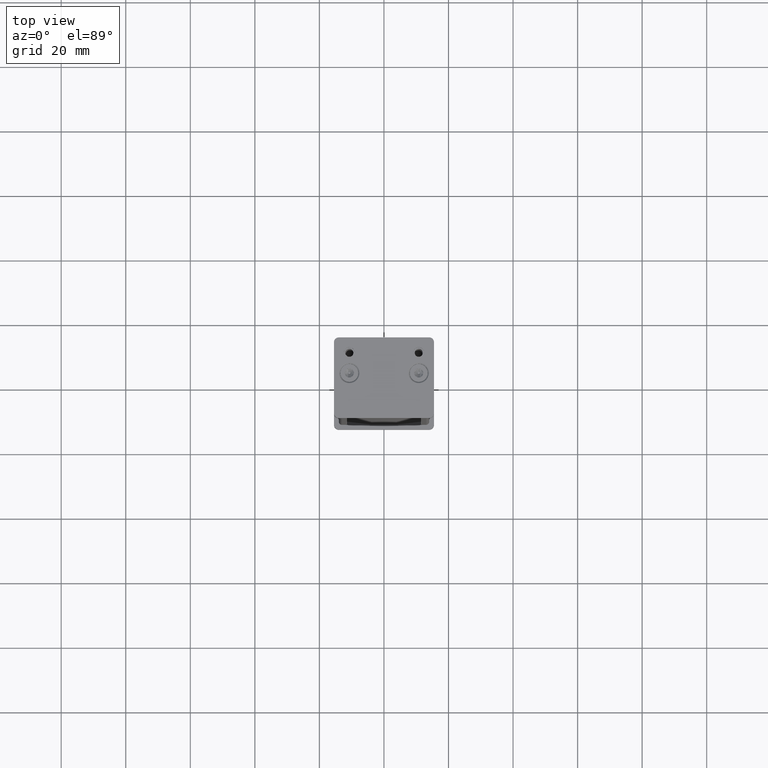
[diagram: clean part render]
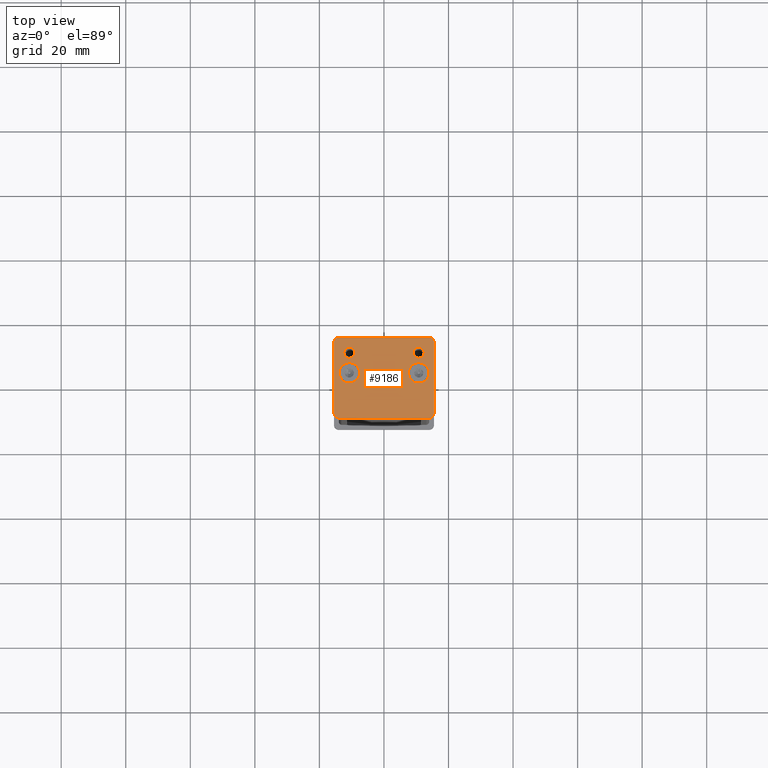
[diagram: same view with one face highlighted and labeled with its STEP entity id]
A machine part, top view. The second image highlights one B-rep face of the part: STEP entity #9186.
In plain terms, the highlighted planar face has unit normal (-0, 0, 1).
Its self-contained STEP definition (entity closure, byte-faithful):
#105 = DIRECTION ( 'NONE',  ( -1.000000000000000000, 0.000000000000000000, 0.000000000000000000 ) ) ;
#230 = CARTESIAN_POINT ( 'NONE',  ( 13.90000000000000391, 105.0000000000000142, -1.499999999999988676 ) ) ;
#244 = EDGE_CURVE ( 'NONE', #8633, #555, #13095, .T. ) ;
#455 = ORIENTED_EDGE ( 'NONE', *, *, #22037, .F. ) ;
#555 = VERTEX_POINT ( 'NONE', #13223 ) ;
#838 = VERTEX_POINT ( 'NONE', #21368 ) ;
#1101 = DIRECTION ( 'NONE',  ( -1.000000000000000000, 0.000000000000000000, 0.000000000000000000 ) ) ;
#1149 = DIRECTION ( 'NONE',  ( 0.000000000000000000, 1.000000000000000000, 0.000000000000000000 ) ) ;
#1255 = CARTESIAN_POINT ( 'NONE',  ( 14.00000000000000533, 105.0000000000000142, -10.99999999999998046 ) ) ;
#1365 = DIRECTION ( 'NONE',  ( -1.000000000000000000, 0.000000000000000000, 0.000000000000000000 ) ) ;
#1493 = CIRCLE ( 'NONE', #16394, 1.700000000000000178 ) ;
#1613 = CARTESIAN_POINT ( 'NONE',  ( -10.75000000000000711, 105.0000000000000142, -1.499999999999982681 ) ) ;
#1886 = FACE_BOUND ( 'NONE', #3379, .T. ) ;
#1948 = CARTESIAN_POINT ( 'NONE',  ( -12.45000000000000817, 105.0000000000000142, -7.749999999999982236 ) ) ;
#2041 = EDGE_CURVE ( 'NONE', #555, #8633, #9448, .T. ) ;
#2054 = CARTESIAN_POINT ( 'NONE',  ( 10.75000000000000533, 105.0000000000000142, -7.749999999999978684 ) ) ;
#2090 = CIRCLE ( 'NONE', #8631, 1.700000000000000178 ) ;
#2216 = ORIENTED_EDGE ( 'NONE', *, *, #6530, .F. ) ;
#2469 = DIRECTION ( 'NONE',  ( 0.000000000000000000, 1.000000000000000000, 0.000000000000000000 ) ) ;
#2752 = CARTESIAN_POINT ( 'NONE',  ( 9.050000000000016698, 105.0000000000000142, -7.749999999999978684 ) ) ;
#3096 = AXIS2_PLACEMENT_3D ( 'NONE', #14967, #18619, #1101 ) ;
#3140 = CARTESIAN_POINT ( 'NONE',  ( -15.50000000000000533, 105.0000000000000142, -12.49999999999997335 ) ) ;
#3379 = EDGE_LOOP ( 'NONE', ( #4695, #17573 ) ) ;
#3409 = ORIENTED_EDGE ( 'NONE', *, *, #244, .F. ) ;
#3523 = DIRECTION ( 'NONE',  ( 0.000000000000000000, 1.000000000000000000, 0.000000000000000000 ) ) ;
#3632 = AXIS2_PLACEMENT_3D ( 'NONE', #11340, #2469, #21686 ) ;
#4167 = DIRECTION ( 'NONE',  ( -1.000000000000000000, 0.000000000000000000, -1.377972324345833111E-16 ) ) ;
#4183 = CARTESIAN_POINT ( 'NONE',  ( -7.600000000000007638, 105.0000000000000142, -1.499999999999982681 ) ) ;
#4249 = VECTOR ( 'NONE', #14969, 1000.000000000000000 ) ;
#4339 = EDGE_CURVE ( 'NONE', #21824, #22077, #16234, .T. ) ;
#4695 = ORIENTED_EDGE ( 'NONE', *, *, #4339, .F. ) ;
#4730 = DIRECTION ( 'NONE',  ( -1.000000000000000000, 0.000000000000000000, -1.376764663473656463E-16 ) ) ;
#5179 = EDGE_CURVE ( 'NONE', #22077, #21824, #2090, .T. ) ;
#5225 = CARTESIAN_POINT ( 'NONE',  ( -10.75000000000000711, 105.0000000000000142, -7.749999999999982236 ) ) ;
#5247 = ORIENTED_EDGE ( 'NONE', *, *, #21325, .T. ) ;
#5575 = DIRECTION ( 'NONE',  ( 0.000000000000000000, 1.000000000000000000, 0.000000000000000000 ) ) ;
#5691 = DIRECTION ( 'NONE',  ( -1.000000000000000000, 0.000000000000000000, 0.000000000000000000 ) ) ;
#6381 = AXIS2_PLACEMENT_3D ( 'NONE', #7811, #20326, #4730 ) ;
#6530 = EDGE_CURVE ( 'NONE', #13995, #9871, #12128, .T. ) ;
#7104 = AXIS2_PLACEMENT_3D ( 'NONE', #11568, #21803, #9964 ) ;
#7391 = DIRECTION ( 'NONE',  ( 0.000000000000000000, 1.000000000000000000, 0.000000000000000000 ) ) ;
#7397 = EDGE_CURVE ( 'NONE', #13341, #10915, #14733, .T. ) ;
#7796 = DIRECTION ( 'NONE',  ( 1.000000000000000000, 0.000000000000000000, 1.377972324345833111E-16 ) ) ;
#7811 = CARTESIAN_POINT ( 'NONE',  ( -10.75000000000000711, 105.0000000000000142, -1.499999999999982681 ) ) ;
#7843 = AXIS2_PLACEMENT_3D ( 'NONE', #1613, #7391, #13772 ) ;
#7947 = CARTESIAN_POINT ( 'NONE',  ( 15.50000000000000711, 105.0000000000000142, -10.99999999999998046 ) ) ;
#7979 = CARTESIAN_POINT ( 'NONE',  ( -15.50000000000000888, 105.0000000000000142, 11.00000000000001599 ) ) ;
#8537 = ORIENTED_EDGE ( 'NONE', *, *, #18705, .F. ) ;
#8624 = DIRECTION ( 'NONE',  ( -1.000000000000000000, 0.000000000000000000, 0.000000000000000000 ) ) ;
#8631 = AXIS2_PLACEMENT_3D ( 'NONE', #2054, #5575, #5691 ) ;
#8633 = VERTEX_POINT ( 'NONE', #230 ) ;
#8642 = EDGE_LOOP ( 'NONE', ( #13720, #20211 ) ) ;
#8705 = FACE_BOUND ( 'NONE', #8642, .T. ) ;
#8757 = AXIS2_PLACEMENT_3D ( 'NONE', #5225, #12069, #10810 ) ;
#8929 = EDGE_CURVE ( 'NONE', #13004, #19572, #12827, .T. ) ;
#8933 = EDGE_CURVE ( 'NONE', #13317, #838, #13161, .T. ) ;
#9162 = FACE_BOUND ( 'NONE', #14958, .T. ) ;
#9186 = ADVANCED_FACE ( 'NONE', ( #17460, #1886, #17345, #9162, #8705 ), #10873, .T. ) ;
#9448 = CIRCLE ( 'NONE', #15599, 3.149999999999999911 ) ;
#9594 = DIRECTION ( 'NONE',  ( -1.000000000000000000, 0.000000000000000000, -1.376764663473656463E-16 ) ) ;
#9789 = CARTESIAN_POINT ( 'NONE',  ( -15.50000000000000533, 105.0000000000000142, -10.99999999999998401 ) ) ;
#9818 = DIRECTION ( 'NONE',  ( 0.000000000000000000, 1.000000000000000000, 0.000000000000000000 ) ) ;
#9871 = VERTEX_POINT ( 'NONE', #21614 ) ;
#9964 = DIRECTION ( 'NONE',  ( -1.000000000000000000, 0.000000000000000000, 0.000000000000000000 ) ) ;
#9990 = CIRCLE ( 'NONE', #6381, 3.149999999999999911 ) ;
#10728 = CIRCLE ( 'NONE', #7104, 1.499999999999999556 ) ;
#10810 = DIRECTION ( 'NONE',  ( -1.000000000000000000, 0.000000000000000000, 0.000000000000000000 ) ) ;
#10873 = PLANE ( 'NONE',  #15862 ) ;
#10915 = VERTEX_POINT ( 'NONE', #19349 ) ;
#11117 = CARTESIAN_POINT ( 'NONE',  ( 15.50000000000000711, 105.0000000000000142, -12.49999999999996980 ) ) ;
#11340 = CARTESIAN_POINT ( 'NONE',  ( 10.75000000000000533, 105.0000000000000142, -1.499999999999989564 ) ) ;
#11568 = CARTESIAN_POINT ( 'NONE',  ( -14.00000000000000355, 105.0000000000000142, -10.99999999999998401 ) ) ;
#11622 = EDGE_LOOP ( 'NONE', ( #8537, #455 ) ) ;
#12069 = DIRECTION ( 'NONE',  ( 0.000000000000000000, 1.000000000000000000, 0.000000000000000000 ) ) ;
#12125 = CIRCLE ( 'NONE', #14651, 1.499999999999999556 ) ;
#12128 = LINE ( 'NONE', #13822, #15208 ) ;
#12402 = CIRCLE ( 'NONE', #8757, 1.700000000000000178 ) ;
#12466 = DIRECTION ( 'NONE',  ( 1.377972324345833111E-16, 0.000000000000000000, -1.000000000000000000 ) ) ;
#12723 = AXIS2_PLACEMENT_3D ( 'NONE', #1255, #1149, #1365 ) ;
#12827 = LINE ( 'NONE', #19760, #14040 ) ;
#12842 = CARTESIAN_POINT ( 'NONE',  ( -10.75000000000000711, 105.0000000000000142, -7.749999999999982236 ) ) ;
#13004 = VERTEX_POINT ( 'NONE', #13229 ) ;
#13095 = CIRCLE ( 'NONE', #3632, 3.149999999999999911 ) ;
#13149 = ORIENTED_EDGE ( 'NONE', *, *, #15851, .F. ) ;
#13161 = LINE ( 'NONE', #11117, #4249 ) ;
#13223 = CARTESIAN_POINT ( 'NONE',  ( 7.600000000000004974, 105.0000000000000142, -1.499999999999989564 ) ) ;
#13229 = CARTESIAN_POINT ( 'NONE',  ( 14.00000000000000178, 105.0000000000000142, 12.50000000000002132 ) ) ;
#13317 = VERTEX_POINT ( 'NONE', #7947 ) ;
#13341 = VERTEX_POINT ( 'NONE', #4183 ) ;
#13720 = ORIENTED_EDGE ( 'NONE', *, *, #16891, .F. ) ;
#13772 = DIRECTION ( 'NONE',  ( -1.000000000000000000, 0.000000000000000000, -1.376764663473656463E-16 ) ) ;
#13822 = CARTESIAN_POINT ( 'NONE',  ( -15.50000000000000533, 105.0000000000000142, -12.49999999999997335 ) ) ;
#13840 = EDGE_LOOP ( 'NONE', ( #16732, #5247, #2216, #17743, #13149, #15275, #18885, #16853 ) ) ;
#13995 = VERTEX_POINT ( 'NONE', #18460 ) ;
#14040 = VECTOR ( 'NONE', #4167, 1000.000000000000000 ) ;
#14238 = VERTEX_POINT ( 'NONE', #1948 ) ;
#14321 = VECTOR ( 'NONE', #15405, 1000.000000000000000 ) ;
#14537 = DIRECTION ( 'NONE',  ( 0.000000000000000000, 1.000000000000000000, 0.000000000000000000 ) ) ;
#14651 = AXIS2_PLACEMENT_3D ( 'NONE', #19107, #3523, #105 ) ;
#14733 = CIRCLE ( 'NONE', #7843, 3.149999999999999911 ) ;
#14882 = CIRCLE ( 'NONE', #12723, 1.499999999999999556 ) ;
#14940 = EDGE_CURVE ( 'NONE', #13004, #838, #12125, .T. ) ;
#14958 = EDGE_LOOP ( 'NONE', ( #17902, #3409 ) ) ;
#14967 = CARTESIAN_POINT ( 'NONE',  ( -14.00000000000000711, 105.0000000000000142, 11.00000000000001599 ) ) ;
#14969 = DIRECTION ( 'NONE',  ( -1.377972324345833111E-16, 0.000000000000000000, 1.000000000000000000 ) ) ;
#15010 = CARTESIAN_POINT ( 'NONE',  ( -14.00000000000000711, 105.0000000000000142, 12.50000000000001776 ) ) ;
#15208 = VECTOR ( 'NONE', #7796, 1000.000000000000000 ) ;
#15275 = ORIENTED_EDGE ( 'NONE', *, *, #16910, .T. ) ;
#15405 = DIRECTION ( 'NONE',  ( 1.377972324345833111E-16, 0.000000000000000000, -1.000000000000000000 ) ) ;
#15599 = AXIS2_PLACEMENT_3D ( 'NONE', #22099, #9818, #9594 ) ;
#15628 = CARTESIAN_POINT ( 'NONE',  ( -5.204170427930421283E-15, 105.0000000000000142, 1.387778780781445676E-14 ) ) ;
#15851 = EDGE_CURVE ( 'NONE', #19619, #21288, #17454, .T. ) ;
#15862 = AXIS2_PLACEMENT_3D ( 'NONE', #15628, #16096, #12466 ) ;
#16096 = DIRECTION ( 'NONE',  ( 0.000000000000000000, 1.000000000000000000, 0.000000000000000000 ) ) ;
#16234 = CIRCLE ( 'NONE', #20945, 1.700000000000000178 ) ;
#16394 = AXIS2_PLACEMENT_3D ( 'NONE', #12842, #14537, #21256 ) ;
#16547 = CIRCLE ( 'NONE', #3096, 1.499999999999999556 ) ;
#16732 = ORIENTED_EDGE ( 'NONE', *, *, #8933, .F. ) ;
#16842 = EDGE_CURVE ( 'NONE', #13995, #21288, #10728, .T. ) ;
#16853 = ORIENTED_EDGE ( 'NONE', *, *, #14940, .T. ) ;
#16891 = EDGE_CURVE ( 'NONE', #10915, #13341, #9990, .T. ) ;
#16910 = EDGE_CURVE ( 'NONE', #19619, #19572, #16547, .T. ) ;
#17345 = FACE_BOUND ( 'NONE', #11622, .T. ) ;
#17454 = LINE ( 'NONE', #3140, #14321 ) ;
#17460 = FACE_OUTER_BOUND ( 'NONE', #13840, .T. ) ;
#17550 = CARTESIAN_POINT ( 'NONE',  ( -9.050000000000007816, 105.0000000000000142, -7.749999999999982236 ) ) ;
#17573 = ORIENTED_EDGE ( 'NONE', *, *, #5179, .F. ) ;
#17743 = ORIENTED_EDGE ( 'NONE', *, *, #16842, .T. ) ;
#17902 = ORIENTED_EDGE ( 'NONE', *, *, #2041, .F. ) ;
#18220 = VERTEX_POINT ( 'NONE', #17550 ) ;
#18460 = CARTESIAN_POINT ( 'NONE',  ( -14.00000000000000355, 105.0000000000000142, -12.49999999999997335 ) ) ;
#18619 = DIRECTION ( 'NONE',  ( 0.000000000000000000, 1.000000000000000000, 0.000000000000000000 ) ) ;
#18705 = EDGE_CURVE ( 'NONE', #14238, #18220, #1493, .T. ) ;
#18885 = ORIENTED_EDGE ( 'NONE', *, *, #8929, .F. ) ;
#19107 = CARTESIAN_POINT ( 'NONE',  ( 14.00000000000000355, 105.0000000000000142, 11.00000000000001954 ) ) ;
#19349 = CARTESIAN_POINT ( 'NONE',  ( -13.90000000000000746, 105.0000000000000142, -1.499999999999983569 ) ) ;
#19456 = CARTESIAN_POINT ( 'NONE',  ( 12.44999999999999574, 105.0000000000000142, -7.749999999999978684 ) ) ;
#19572 = VERTEX_POINT ( 'NONE', #15010 ) ;
#19619 = VERTEX_POINT ( 'NONE', #7979 ) ;
#19760 = CARTESIAN_POINT ( 'NONE',  ( -15.50000000000000888, 105.0000000000000142, 12.50000000000001776 ) ) ;
#20211 = ORIENTED_EDGE ( 'NONE', *, *, #7397, .F. ) ;
#20326 = DIRECTION ( 'NONE',  ( 0.000000000000000000, 1.000000000000000000, 0.000000000000000000 ) ) ;
#20568 = DIRECTION ( 'NONE',  ( 0.000000000000000000, 1.000000000000000000, 0.000000000000000000 ) ) ;
#20945 = AXIS2_PLACEMENT_3D ( 'NONE', #22388, #20568, #8624 ) ;
#21256 = DIRECTION ( 'NONE',  ( -1.000000000000000000, 0.000000000000000000, 0.000000000000000000 ) ) ;
#21288 = VERTEX_POINT ( 'NONE', #9789 ) ;
#21325 = EDGE_CURVE ( 'NONE', #13317, #9871, #14882, .T. ) ;
#21368 = CARTESIAN_POINT ( 'NONE',  ( 15.50000000000000355, 105.0000000000000142, 11.00000000000001066 ) ) ;
#21614 = CARTESIAN_POINT ( 'NONE',  ( 14.00000000000000533, 105.0000000000000142, -12.49999999999996980 ) ) ;
#21686 = DIRECTION ( 'NONE',  ( -1.000000000000000000, 0.000000000000000000, -1.376764663473656463E-16 ) ) ;
#21803 = DIRECTION ( 'NONE',  ( 0.000000000000000000, 1.000000000000000000, 0.000000000000000000 ) ) ;
#21824 = VERTEX_POINT ( 'NONE', #2752 ) ;
#22037 = EDGE_CURVE ( 'NONE', #18220, #14238, #12402, .T. ) ;
#22077 = VERTEX_POINT ( 'NONE', #19456 ) ;
#22099 = CARTESIAN_POINT ( 'NONE',  ( 10.75000000000000533, 105.0000000000000142, -1.499999999999989564 ) ) ;
#22388 = CARTESIAN_POINT ( 'NONE',  ( 10.75000000000000533, 105.0000000000000142, -7.749999999999978684 ) ) ;